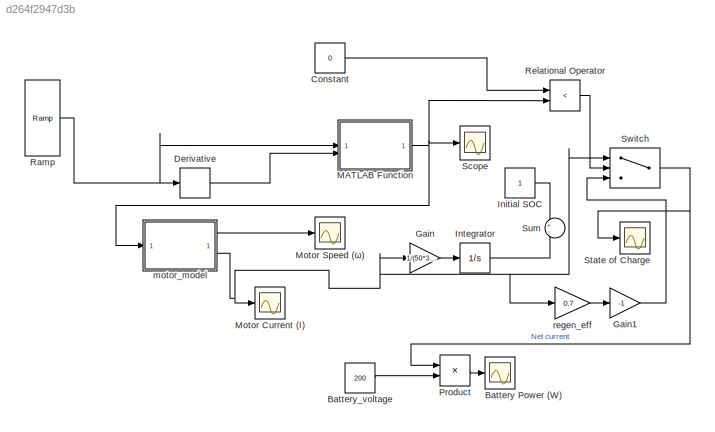
MODEL slx_d264f2947d3b
KIND model
CONFIG AbsTol = auto
CONFIG EnableMultiTasking = off
CONFIG FixedStep = auto
CONFIG MaxStep = auto
CONFIG MinStep = auto
CONFIG RelTol = 1e-3
CONFIG SampleTimeConstraint = Unconstrained
CONFIG SolverName = VariableStepAuto
CONFIG StartTime = 0.0
CONFIG StopTime = 20
BLOCK [Scope] Battery Power (W)
  ActiveDisplayYMaximum = 197955.90000000002
  ActiveDisplayYMinimum = -6299.1000000000022
  DataLoggingVariableName = ScopeData3
  Floating = off
  GraphicalSettings = {"Style":{"BackgroundColor":[0.12941176470588237,0.12941176470588237,0.12941176470588237],"AxesColor":[0.07058823529411765,0.07058823529411765,0.07058823529411765],"LabelsColor":[0.8509803921568627,0.8509803921568627,0.8509803921568627],"PreserveColors":false,"Visible":[true],"LineStyle":["-"],"LineWidth":[1.5],"BarWidth":[0.9],"LineColor":["auto"],"LineFaceAlpha":[1],"LineEdgeAlpha":[1],"Marker":...<+1889ch>
  MultipleDisplayCache = [{"MaxYLimMag":197955.90000000002,"MaxYLimReal":197955.90000000002,"MinYLimMag":0,"MinYLimReal":-6299.1000000000022,"PlotAsMagnitudePhase":false,"ShowGrid":true,"ShowLegend":false,"Title":"%<SignalLabel>","YLabel":""}]
  NumInputPorts = 1
  ScopeFrameLocation = window
  WasSavedAsWebScope = on
  WindowPosition = [573.000000,270.000000,560.000000,420.000000,]
BLOCK [Constant] Battery_voltage
  Value = 200
BLOCK [Constant] Constant
  Value = 0
BLOCK [Derivative] Derivative
BLOCK [Gain] Gain
  Gain = 1/(50*3600)
BLOCK [Gain] Gain1
  Gain = -1
BLOCK [Constant] Initial SOC
BLOCK [Integrator] Integrator
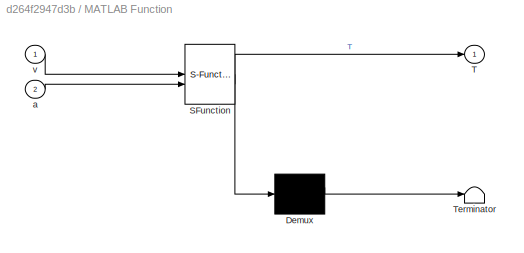
BLOCK [SubSystem] MATLAB Function
  ErrorFcn = Stateflow.Translate.translate
  PermitHierarchicalResolution = ExplicitOnly
  SFBlockType = MATLAB Function
  TreatAsAtomicUnit = on
BLOCK [Demux] MATLAB Function/ Demux 
  Outputs = 1
BLOCK [S-Function] MATLAB Function/ SFunction 
  EnableBusSupport = off
  FunctionName = sf_sfun
  PortCounts = [2 2]
  SFcnIsStateOwnerBlock = off
  SFunctionDeploymentMode = off
  Tag = Stateflow S-Function 2
BLOCK [Terminator] MATLAB Function/ Terminator 
BLOCK [Outport] MATLAB Function/T
BLOCK [Inport] MATLAB Function/a
  Port = 2
BLOCK [Inport] MATLAB Function/v
BLOCK [Scope] Motor Current (I)
  ActiveDisplayYMaximum = 989.7795000000001
  ActiveDisplayYMinimum = -31.495499999999993
  DataLoggingVariableName = ScopeData2
  Floating = off
  GraphicalSettings = {"Style":{"BackgroundColor":[0.12941176470588237,0.12941176470588237,0.12941176470588237],"AxesColor":[0.07058823529411765,0.07058823529411765,0.07058823529411765],"LabelsColor":[0.8509803921568627,0.8509803921568627,0.8509803921568627],"PreserveColors":false,"Visible":[true],"LineStyle":["-"],"LineWidth":[1.5],"BarWidth":[0.9],"LineColor":["auto"],"LineFaceAlpha":[1],"LineEdgeAlpha":[1],"Marker":...<+1993ch>
  MultipleDisplayCache = [{"MaxYLimMag":989.7795000000001,"MaxYLimReal":989.7795000000001,"MinYLimMag":0,"MinYLimReal":-31.495499999999993,"PlotAsMagnitudePhase":false,"ShowGrid":true,"ShowLegend":false,"Title":"%<SignalLabel>","YLabel":""}]
  NumInputPorts = 1
  ScopeFrameLocation = window
  WasSavedAsWebScope = on
  WindowPosition = [1139.000000,261.000000,560.000000,420.000000,]
BLOCK [Scope] Motor Speed (ω)
  ActiveDisplayYMaximum = 606.2991
  ActiveDisplayYMinimum = 402.0441
  DataLoggingVariableName = ScopeData1
  Floating = off
  GraphicalSettings = {"Style":{"BackgroundColor":[0.12941176470588237,0.12941176470588237,0.12941176470588237],"AxesColor":[0.07058823529411765,0.07058823529411765,0.07058823529411765],"LabelsColor":[0.8509803921568627,0.8509803921568627,0.8509803921568627],"PreserveColors":false,"Visible":[true],"LineStyle":["-"],"LineWidth":[1.5],"BarWidth":[0.9],"LineColor":["auto"],"LineFaceAlpha":[1],"LineEdgeAlpha":[1],"Marker":...<+1953ch>
  MultipleDisplayCache = [{"MaxYLimMag":606.2991,"MaxYLimReal":606.2991,"MinYLimMag":402.0441,"MinYLimReal":402.0441,"PlotAsMagnitudePhase":false,"ShowGrid":true,"ShowLegend":false,"Title":"%<SignalLabel>","YLabel":""}]
  NumInputPorts = 1
  ScopeFrameLocation = window
  WasSavedAsWebScope = on
  WindowPosition = [63.000000,68.000000,560.000000,420.000000,]
BLOCK [Product] Product
BLOCK [Reference] Ramp  REF=simulink/Sources/Ramp
  SourceBlock = simulink/Sources/Ramp
  SourceType = Ramp
BLOCK [RelationalOperator] Relational Operator
  InputSameDT = off
  Operator = <
  OutDataTypeStr = boolean
  RndMeth = Simplest
BLOCK [Scope] Scope
  ActiveDisplayYMaximum = 1
  ActiveDisplayYMinimum = -1
  Floating = off
  GraphicalSettings = {"Style":{"BackgroundColor":[0.12941176470588237,0.12941176470588237,0.12941176470588237],"AxesColor":[0.07058823529411765,0.07058823529411765,0.07058823529411765],"LabelsColor":[0.8509803921568627,0.8509803921568627,0.8509803921568627],"PreserveColors":false,"Visible":[true],"LineStyle":["-"],"LineWidth":[1.5],"BarWidth":[0.9],"LineColor":["auto"],"LineFaceAlpha":[1],"LineEdgeAlpha":[1],"Marker":...<+1992ch>
  MultipleDisplayCache = [{"MaxYLimMag":1,"MaxYLimReal":1,"MinYLimMag":0,"MinYLimReal":-1,"PlotAsMagnitudePhase":false,"ShowGrid":true,"ShowLegend":false,"Title":"%<SignalLabel>","YLabel":""}]
  NumInputPorts = 1
  ScopeFrameLocation = window
  WasSavedAsWebScope = on
  WindowPosition = [573.000000,270.000000,560.000000,420.000000,]
BLOCK [Scope] State of Charge 
  ActiveDisplayYMaximum = 989.7795000000001
  ActiveDisplayYMinimum = -31.495499999999993
  DataLoggingVariableName = ScopeData4
  Floating = off
  GraphicalSettings = {"Style":{"BackgroundColor":[0.12941176470588237,0.12941176470588237,0.12941176470588237],"AxesColor":[0.07058823529411765,0.07058823529411765,0.07058823529411765],"LabelsColor":[0.8509803921568627,0.8509803921568627,0.8509803921568627],"PreserveColors":false,"Visible":[true],"LineStyle":["-"],"LineWidth":[1.5],"BarWidth":[0.9],"LineColor":["auto"],"LineFaceAlpha":[1],"LineEdgeAlpha":[1],"Marker":...<+1991ch>
  MultipleDisplayCache = [{"MaxYLimMag":989.7795000000001,"MaxYLimReal":989.7795000000001,"MinYLimMag":0,"MinYLimReal":-31.495499999999993,"PlotAsMagnitudePhase":false,"ShowGrid":true,"ShowLegend":false,"Title":"%<SignalLabel>","YLabel":""}]
  NumInputPorts = 1
  ScopeFrameLocation = window
  WasSavedAsWebScope = on
  WindowPosition = [573.000000,270.000000,560.000000,420.000000,]
BLOCK [Sum] Sum
  Inputs = +-
BLOCK [Switch] Switch
  Criteria = u2 ~= 0
  InputSameDT = off
  SaturateOnIntegerOverflow = off
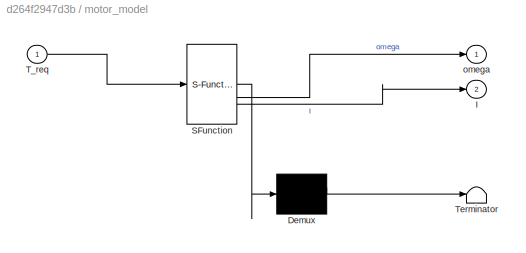
BLOCK [SubSystem] motor_model
  ErrorFcn = Stateflow.Translate.translate
  PermitHierarchicalResolution = ExplicitOnly
  SFBlockType = MATLAB Function
  TreatAsAtomicUnit = on
BLOCK [Demux] motor_model/ Demux 
  Outputs = 1
BLOCK [S-Function] motor_model/ SFunction 
  EnableBusSupport = off
  FunctionName = sf_sfun
  PortCounts = [1 3]
  SFcnIsStateOwnerBlock = off
  SFunctionDeploymentMode = off
  Tag = Stateflow S-Function 1
BLOCK [Terminator] motor_model/ Terminator 
BLOCK [Outport] motor_model/I
  Port = 2
BLOCK [Inport] motor_model/T_req
BLOCK [Outport] motor_model/omega
BLOCK [Gain] regen_eff
  Gain = 0.7
LINE Battery_voltage:1 -> Product:2
LINE Constant:1 -> Relational Operator:1
LINE Derivative:1 -> MATLAB Function:2
LINE Gain1:1 -> Switch:3
LINE Gain:1 -> Integrator:1
LINE Initial SOC:1 -> Sum:1
LINE Integrator:1 -> Sum:2
NET MATLAB Function:1 -> Relational Operator:2, Scope:1, motor_model:1
LINE Product:1 -> Battery Power (W):1
NET Ramp:1 -> Derivative:1, MATLAB Function:1
LINE Relational Operator:1 -> Switch:2
NET Switch:1 -> Product:1, State of Charge :1
LINE motor_model:1 -> Motor Speed (ω):1
NET motor_model:2 -> Gain:1, Motor Current (I):1, Switch:1, regen_eff:1
LINE regen_eff:1 -> Gain1:1
note: NET lines group one-source signal fan-out (src -> all destinations, sorted); 1:1 wires keep LINE
CHART MATLAB Function states=1 transitions=1
  STATE_LABEL 'eML_blk_kernel()'
  STATE_LABEL 'SCRIPT:\nfunction T = vehicle_dynamics(v, a)\n    m = 1200; g = 9.81; Cr = 0.01;\n    rho = 1.225; A = 2.2; Cd = 0.3; R = 0.3;\n    F_inertia = m * a;\n    F_roll    = m * g * Cr;\n    F_aero    = 0.5 * rho * A * Cd * v^2;\n    T = (F_inertia + F_roll + F_aero) * R;\nend\n'
CHART motor_model states=1 transitions=1
  STATE_LABEL 'eML_blk_kernel()'
  STATE_LABEL 'SCRIPT:\nfunction [omega, I] = motor_model(T_req)\n    % Motor parameters\n    Kt = 0.5;    % Nm/A\n    Ke = 0.5;    % V·s/rad\n    Rm = 0.1;    % Ohm (winding resistance)\n    J  = 0.1;    % kg·m^2 (rotor inertia)\n    Vb = 300;    % V (battery voltage)\n\n    % Current needed to produce torque\n    I = T_req / Kt;\n\n    % Electrical voltage after resistive drop\n    V_emf = Vb - I * Rm;\n\n    % Angular speed...<+51ch>'
CHART  states=0 transitions=0
CHART  states=0 transitions=0
